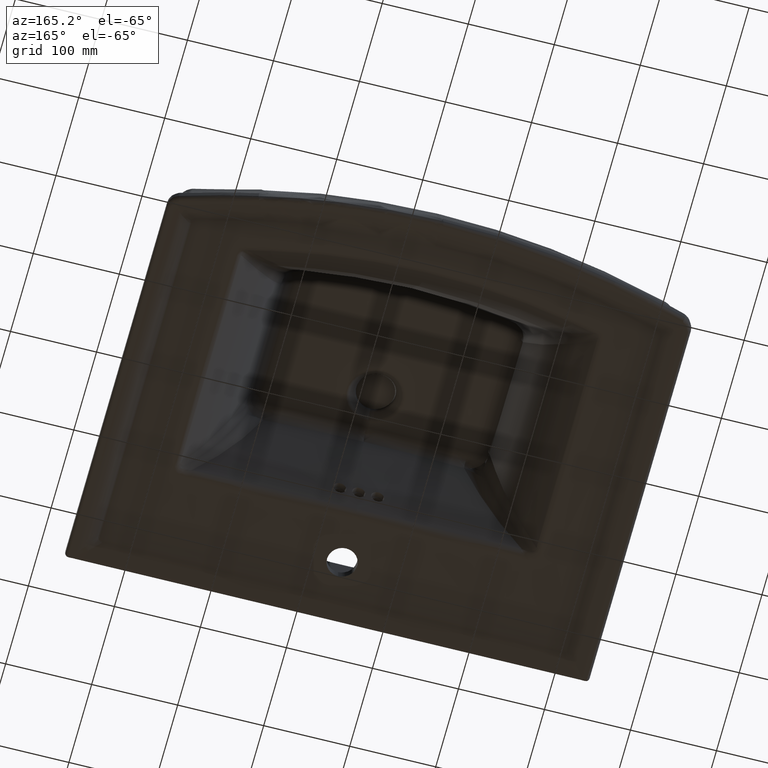
[diagram: clean part render]
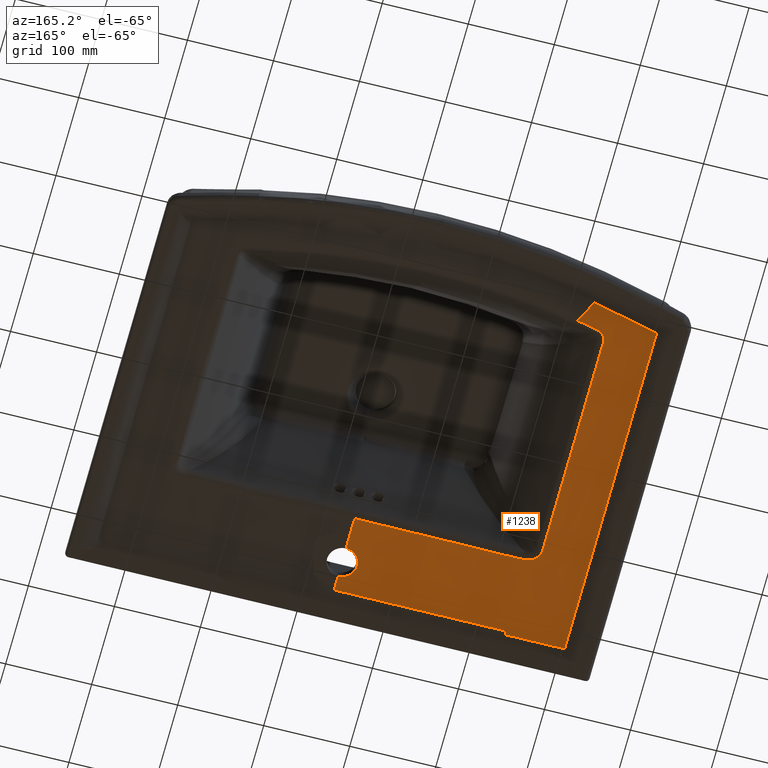
[diagram: same view with one face highlighted and labeled with its STEP entity id]
A machine part, auxiliary view. The second image highlights one B-rep face of the part: STEP entity #1238.
In plain terms, the highlighted face is a freeform B-spline surface patch.
Its self-contained STEP definition (entity closure, byte-faithful):
#527=(
BOUNDED_CURVE()
B_SPLINE_CURVE(3,(#27960,#27961,#27962,#27963,#27964,#27965,#27966,#27967,
#27968),.UNSPECIFIED.,.F.,.F.)
B_SPLINE_CURVE_WITH_KNOTS((4,1,1,1,1,1,4),(0.,0.204443085170576,0.397209226529622,
0.571420961974944,0.730323399031932,0.877170999029021,1.),.UNSPECIFIED.)
CURVE()
GEOMETRIC_REPRESENTATION_ITEM()
RATIONAL_B_SPLINE_CURVE((1.04133272269026,1.04133272269026,1.04133272269026,
1.04133272269026,1.04133272269026,1.04133272269026,1.04133272269026,1.04133272269026,
1.04133272269026))
REPRESENTATION_ITEM('')
);
#533=(
BOUNDED_CURVE()
B_SPLINE_CURVE(3,(#28456,#28457,#28458,#28459,#28460,#28461,#28462,#28463,
#28464,#28465),.UNSPECIFIED.,.F.,.F.)
B_SPLINE_CURVE_WITH_KNOTS((4,1,1,1,1,1,1,4),(0.,0.138300397537173,0.290928901350159,
0.446799577335633,0.597805811924647,0.737742475136925,0.884218695482368,
1.),.UNSPECIFIED.)
CURVE()
GEOMETRIC_REPRESENTATION_ITEM()
RATIONAL_B_SPLINE_CURVE((1.09730078944005,1.09730078944005,1.09730078944005,
1.09730078944005,1.09730078944005,1.09730078944005,1.09730078944005,1.09730078944005,
1.09730078944005,1.09730078944005))
REPRESENTATION_ITEM('')
);
#792=B_SPLINE_SURFACE_WITH_KNOTS('',3,3,((#29139,#29140,#29141,#29142,#29143,
#29144,#29145),(#29146,#29147,#29148,#29149,#29150,#29151,#29152),(#29153,
#29154,#29155,#29156,#29157,#29158,#29159),(#29160,#29161,#29162,#29163,
#29164,#29165,#29166),(#29167,#29168,#29169,#29170,#29171,#29172,#29173)),
 .UNSPECIFIED.,.F.,.F.,.F.,(4,1,4),(4,3,4),(0.,0.499903190651524,1.),(0.,
0.99009900990099,1.),.UNSPECIFIED.);
#1238=ADVANCED_FACE('',(#1762),#792,.T.);
#1762=FACE_OUTER_BOUND('',#2240,.T.);
#2240=EDGE_LOOP('',(#4376,#4377,#4378,#4379,#4380,#4381,#4382,#4383,#4384,
#4385,#4386,#4387,#4388,#4389,#4390,#4391,#4392));
#4376=ORIENTED_EDGE('',*,*,#6270,.T.);
#4377=ORIENTED_EDGE('',*,*,#6293,.F.);
#4378=ORIENTED_EDGE('',*,*,#6298,.F.);
#4379=ORIENTED_EDGE('',*,*,#6299,.F.);
#4380=ORIENTED_EDGE('',*,*,#6290,.F.);
#4381=ORIENTED_EDGE('',*,*,#6411,.F.);
#4382=ORIENTED_EDGE('',*,*,#5728,.T.);
#4383=ORIENTED_EDGE('',*,*,#6416,.F.);
#4384=ORIENTED_EDGE('',*,*,#6389,.F.);
#4385=ORIENTED_EDGE('',*,*,#6387,.F.);
#4386=ORIENTED_EDGE('',*,*,#6385,.F.);
#4387=ORIENTED_EDGE('',*,*,#6399,.F.);
#4388=ORIENTED_EDGE('',*,*,#6417,.F.);
#4389=ORIENTED_EDGE('',*,*,#6418,.F.);
#4390=ORIENTED_EDGE('',*,*,#6419,.F.);
#4391=ORIENTED_EDGE('',*,*,#6420,.F.);
#4392=ORIENTED_EDGE('',*,*,#6271,.T.);
#5002=VERTEX_POINT('',#11744);
#5003=VERTEX_POINT('',#11749);
#5283=VERTEX_POINT('',#23667);
#5289=VERTEX_POINT('',#23827);
#5290=VERTEX_POINT('',#23835);
#5304=VERTEX_POINT('',#24358);
#5305=VERTEX_POINT('',#24370);
#5306=VERTEX_POINT('',#24469);
#5309=VERTEX_POINT('',#24606);
#5350=VERTEX_POINT('',#27841);
#5351=VERTEX_POINT('',#27846);
#5352=VERTEX_POINT('',#27959);
#5353=VERTEX_POINT('',#28009);
#5358=VERTEX_POINT('',#28354);
#5361=VERTEX_POINT('',#29118);
#5362=VERTEX_POINT('',#29127);
#5363=VERTEX_POINT('',#29134);
#5728=EDGE_CURVE('',#5003,#5002,#6731,.T.);
#6270=EDGE_CURVE('',#5289,#5283,#7089,.T.);
#6271=EDGE_CURVE('',#5290,#5289,#7090,.T.);
#6290=EDGE_CURVE('',#5304,#5305,#7106,.T.);
#6293=EDGE_CURVE('',#5306,#5283,#7107,.T.);
#6298=EDGE_CURVE('',#5309,#5306,#7111,.T.);
#6299=EDGE_CURVE('',#5305,#5309,#7112,.T.);
#6385=EDGE_CURVE('',#5351,#5350,#7180,.T.);
#6387=EDGE_CURVE('',#5350,#5352,#527,.T.);
#6389=EDGE_CURVE('',#5352,#5353,#7182,.T.);
#6399=EDGE_CURVE('',#5358,#5351,#533,.T.);
#6411=EDGE_CURVE('',#5003,#5304,#7197,.T.);
#6416=EDGE_CURVE('',#5353,#5002,#7202,.T.);
#6417=EDGE_CURVE('',#5361,#5358,#7203,.T.);
#6418=EDGE_CURVE('',#5362,#5361,#7204,.T.);
#6419=EDGE_CURVE('',#5363,#5362,#7205,.T.);
#6420=EDGE_CURVE('',#5290,#5363,#7206,.T.);
#6731=B_SPLINE_CURVE_WITH_KNOTS('',3,(#11745,#11746,#11747,#11748),
 .UNSPECIFIED.,.F.,.F.,(4,4),(0.,1.),.UNSPECIFIED.);
#7089=B_SPLINE_CURVE_WITH_KNOTS('',3,(#23823,#23824,#23825,#23826),
 .UNSPECIFIED.,.F.,.F.,(4,4),(0.,1.),.UNSPECIFIED.);
#7090=B_SPLINE_CURVE_WITH_KNOTS('',3,(#23828,#23829,#23830,#23831,#23832,
#23833,#23834),.UNSPECIFIED.,.F.,.F.,(4,3,4),(0.,0.650571425817919,1.),
 .UNSPECIFIED.);
#7106=B_SPLINE_CURVE_WITH_KNOTS('',3,(#24359,#24360,#24361,#24362,#24363,
#24364,#24365,#24366,#24367,#24368,#24369),.UNSPECIFIED.,.F.,.F.,(4,1,1,
1,1,1,1,1,4),(0.,0.125,0.25,0.375,0.5,0.625,0.75,0.875,1.),
 .UNSPECIFIED.);
#7107=B_SPLINE_CURVE_WITH_KNOTS('',3,(#24470,#24471,#24472,#24473,#24474,
#24475,#24476,#24477,#24478,#24479,#24480,#24481),.UNSPECIFIED.,.F.,.F.,
(4,2,1,2,2,1,4),(0.,0.499999999999999,0.75,0.8125,0.84375,0.875,1.),
 .UNSPECIFIED.);
#7111=B_SPLINE_CURVE_WITH_KNOTS('',3,(#24607,#24608,#24609,#24610,#24611,
#24612,#24613,#24614,#24615,#24616,#24617,#24618,#24619),.UNSPECIFIED.,
 .F.,.F.,(4,1,1,1,1,1,1,1,1,1,4),(0.,0.1,0.2,0.3,0.4,0.5,0.6,0.7,0.8,0.9,
1.),.UNSPECIFIED.);
#7112=B_SPLINE_CURVE_WITH_KNOTS('',3,(#24718,#24719,#24720,#24721,#24722,
#24723,#24724,#24725,#24726,#24727,#24728),.UNSPECIFIED.,.F.,.F.,(4,1,1,
1,1,1,1,1,4),(0.,0.125,0.25,0.375,0.5,0.625,0.75,0.875,1.),
 .UNSPECIFIED.);
#7180=B_SPLINE_CURVE_WITH_KNOTS('',3,(#27847,#27848,#27849,#27850,#27851,
#27852,#27853,#27854,#27855,#27856,#27857,#27858,#27859,#27860,#27861,#27862,
#27863,#27864,#27865,#27866,#27867,#27868,#27869,#27870,#27871,#27872,#27873,
#27874,#27875,#27876,#27877,#27878,#27879,#27880,#27881,#27882,#27883,#27884,
#27885,#27886,#27887,#27888,#27889,#27890,#27891,#27892,#27893,#27894,#27895,
#27896,#27897,#27898,#27899,#27900,#27901,#27902,#27903,#27904),
 .UNSPECIFIED.,.F.,.F.,(4,2,2,2,2,2,2,2,2,2,2,2,2,2,2,2,2,2,2,2,2,2,2,2,
2,2,2,2,4),(0.,0.0624999999999734,0.0937499999999612,0.124999999999949,
0.156249999999937,0.171874999999932,0.187499999999927,0.218749999999914,
0.234374999999909,0.242187499999906,0.249999999999903,0.281249999999903,
0.296874999999903,0.312499999999902,0.343749999999901,0.3593749999999,0.3671874999999,
0.3710937499999,0.3749999999999,0.437499999999902,0.468749999999904,0.484374999999905,
0.499999999999906,0.62499999999993,0.749999999999953,0.812499999999964,
0.84374999999997,0.874999999999976,1.),.UNSPECIFIED.);
#7182=B_SPLINE_CURVE_WITH_KNOTS('',3,(#28010,#28011,#28012,#28013,#28014,
#28015,#28016,#28017,#28018,#28019,#28020,#28021,#28022,#28023,#28024,#28025,
#28026,#28027,#28028,#28029,#28030,#28031,#28032,#28033,#28034,#28035,#28036,
#28037,#28038,#28039,#28040,#28041),.UNSPECIFIED.,.F.,.F.,(4,2,2,2,2,2,
2,2,2,2,2,2,2,2,2,4),(0.,0.0625000000000062,0.0937500000000075,0.109375000000008,
0.125000000000009,0.250000000000009,0.500000000000012,0.625000000000012,
0.750000000000013,0.781250000000012,0.81250000000001,0.843750000000008,
0.875000000000007,0.906250000000005,0.937500000000003,1.),.UNSPECIFIED.);
#7197=B_SPLINE_CURVE_WITH_KNOTS('',3,(#28966,#28967,#28968,#28969),
 .UNSPECIFIED.,.F.,.F.,(4,4),(0.,1.),.UNSPECIFIED.);
#7202=B_SPLINE_CURVE_WITH_KNOTS('',3,(#29086,#29087,#29088,#29089),
 .UNSPECIFIED.,.F.,.F.,(4,4),(0.,1.),.UNSPECIFIED.);
#7203=B_SPLINE_CURVE_WITH_KNOTS('',3,(#29114,#29115,#29116,#29117),
 .UNSPECIFIED.,.F.,.F.,(4,4),(0.,1.),.UNSPECIFIED.);
#7204=B_SPLINE_CURVE_WITH_KNOTS('',3,(#29119,#29120,#29121,#29122,#29123,
#29124,#29125,#29126),.UNSPECIFIED.,.F.,.F.,(4,2,2,4),(0.,0.5,0.75,1.),
 .UNSPECIFIED.);
#7205=B_SPLINE_CURVE_WITH_KNOTS('',3,(#29128,#29129,#29130,#29131,#29132,
#29133),.UNSPECIFIED.,.F.,.F.,(4,2,4),(0.,0.5,1.),.UNSPECIFIED.);
#7206=B_SPLINE_CURVE_WITH_KNOTS('',3,(#29135,#29136,#29137,#29138),
 .UNSPECIFIED.,.F.,.F.,(4,4),(0.,1.),.UNSPECIFIED.);
#11744=CARTESIAN_POINT('',(-170.773231601641,153.302438056999,214.793280192846));
#11745=CARTESIAN_POINT('',(-183.258741515723,153.890813301405,241.568542609684));
#11746=CARTESIAN_POINT('',(-179.132169255207,153.709557311659,232.719079839026));
#11747=CARTESIAN_POINT('',(-174.969853280337,153.51226511149,223.79296442557));
#11748=CARTESIAN_POINT('',(-170.773209971947,153.304450158079,214.793233807816));
#11749=CARTESIAN_POINT('',(-183.258611328937,153.893053713523,241.568263427405));
#23667=CARTESIAN_POINT('',(-191.381273765138,153.873565531653,-182.22024957965));
#23823=CARTESIAN_POINT('',(-191.381273765939,153.765875333024,-177.821016035995));
#23824=CARTESIAN_POINT('',(-191.381273765939,153.801274715329,-179.28743970942));
#23825=CARTESIAN_POINT('',(-191.381273765939,153.837170593732,-180.753851482833));
#23826=CARTESIAN_POINT('',(-191.381273765939,153.873566716243,-182.220250756058));
#23827=CARTESIAN_POINT('',(-191.381273765939,153.765875333024,-177.821016035995));
#23828=CARTESIAN_POINT('',(8.53185434756553,153.572598725017,-177.837925548027));
#23829=CARTESIAN_POINT('',(-34.8207588285009,153.572603358406,-177.837925142658));
#23830=CARTESIAN_POINT('',(-78.1733815467077,153.597976216892,-177.835705305273));
#23831=CARTESIAN_POINT('',(-121.525960712732,153.652072866385,-177.830972461707));
#23832=CARTESIAN_POINT('',(-144.811077932735,153.681128734545,-177.828430402634));
#23833=CARTESIAN_POINT('',(-168.096186688403,153.718575001647,-177.825154278772));
#23834=CARTESIAN_POINT('',(-191.381273765939,153.765875333024,-177.821016035995));
#23835=CARTESIAN_POINT('',(8.53185434756553,153.572598725017,-177.837925548027));
#24358=CARTESIAN_POINT('',(-259.66220970514,153.942963434805,222.535281099339));
#24359=CARTESIAN_POINT('',(-259.66220970514,153.942963434805,222.535281099339));
#24360=CARTESIAN_POINT('',(-259.72998657474,153.943023818405,222.515340445739));
#24361=CARTESIAN_POINT('',(-259.85534625364,153.943125667505,222.468821966839));
#24362=CARTESIAN_POINT('',(-260.01182213484,153.943223446805,222.380249223439));
#24363=CARTESIAN_POINT('',(-260.14158399294,153.943278592905,222.275986109339));
#24364=CARTESIAN_POINT('',(-260.24695291394,153.943295018305,222.156469816939));
#24365=CARTESIAN_POINT('',(-260.32998965304,153.943275141305,222.021298334239));
#24366=CARTESIAN_POINT('',(-260.39122544484,153.943217528105,221.868717185339));
#24367=CARTESIAN_POINT('',(-260.43038003044,153.943119007305,221.696890656139));
#24368=CARTESIAN_POINT('',(-260.43915996154,153.943018642505,221.566649800839));
#24369=CARTESIAN_POINT('',(-260.43923556174,153.942959354205,221.497843292039));
#24370=CARTESIAN_POINT('',(-260.43923556174,153.942959354205,221.497843292039));
#24469=CARTESIAN_POINT('',(-259.35605401144,153.941255707105,-182.099540892462));
#24470=CARTESIAN_POINT('',(-259.35605401184,153.941255435405,-182.099540892962));
#24471=CARTESIAN_POINT('',(-248.630741300428,153.92801170634,-182.122184538635));
#24472=CARTESIAN_POINT('',(-237.65969103003,153.915836891849,-182.143471018606));
#24473=CARTESIAN_POINT('',(-220.834503793019,153.899081342758,-182.173397304858));
#24474=CARTESIAN_POINT('',(-213.747214976334,153.892413507982,-182.185448651781));
#24475=CARTESIAN_POINT('',(-206.563932756521,153.886123094894,-182.196977195726));
#24476=CARTESIAN_POINT('',(-204.403188475422,153.8842584154,-182.200404389378));
#24477=CARTESIAN_POINT('',(-203.714666369689,153.883668338501,-182.201490424096));
#24478=CARTESIAN_POINT('',(-202.179106205877,153.882362733502,-182.203897173377));
#24479=CARTESIAN_POINT('',(-198.33694505489,153.879121682606,-182.209881037283));
#24480=CARTESIAN_POINT('',(-194.478480162127,153.875994720168,-182.215699693485));
#24481=CARTESIAN_POINT('',(-191.381273765938,153.873564347063,-182.22024840324));
#24606=CARTESIAN_POINT('',(-260.43939739624,153.941259653505,-181.016263545062));
#24607=CARTESIAN_POINT('',(-260.43939739624,153.941259653505,-181.016263545062));
#24608=CARTESIAN_POINT('',(-260.43925406544,153.941353004505,-181.092117772162));
#24609=CARTESIAN_POINT('',(-260.43008226094,153.941513211105,-181.234288368362));
#24610=CARTESIAN_POINT('',(-260.39186393624,153.941681093905,-181.416904112062));
#24611=CARTESIAN_POINT('',(-260.33276641654,153.941793481605,-181.575033529962));
#24612=CARTESIAN_POINT('',(-260.25423889004,153.941856800305,-181.710385505562));
#24613=CARTESIAN_POINT('',(-260.15753866444,153.941876088805,-181.824715884262));
#24614=CARTESIAN_POINT('',(-260.04265959494,153.941853472006,-181.919544538662));
#24615=CARTESIAN_POINT('',(-259.90856332784,153.941788213305,-181.995704834962));
#24616=CARTESIAN_POINT('',(-259.75307171914,153.941675876505,-182.052924123262));
#24617=CARTESIAN_POINT('',(-259.57304264294,153.941509356905,-182.090367885862));
#24618=CARTESIAN_POINT('',(-259.43166677594,153.941349096105,-182.099400444662));
#24619=CARTESIAN_POINT('',(-259.35605401144,153.941255707105,-182.099540892462));
#24718=CARTESIAN_POINT('',(-260.43923556174,153.942959354205,221.497843292039));
#24719=CARTESIAN_POINT('',(-260.46326956674,153.928842206405,205.104660320639));
#24720=CARTESIAN_POINT('',(-260.50765918454,153.903053432605,172.224394945239));
#24721=CARTESIAN_POINT('',(-260.56349115244,153.872766417405,122.620935185539));
#24722=CARTESIAN_POINT('',(-260.60326608144,153.851778866205,72.7341705319587));
#24723=CARTESIAN_POINT('',(-260.62396664214,153.841077490805,22.5637108399186));
#24724=CARTESIAN_POINT('',(-260.62191332064,153.841938711205,-27.8910351452614));
#24725=CARTESIAN_POINT('',(-260.59373544014,153.856185468405,-78.6306774266916));
#24726=CARTESIAN_POINT('',(-260.53571307194,153.886531880005,-129.656083080362));
#24727=CARTESIAN_POINT('',(-260.47562949004,153.920157190605,-163.863994715562));
#24728=CARTESIAN_POINT('',(-260.43939739624,153.941259653505,-181.016263545062));
#27841=CARTESIAN_POINT('',(-205.65388159834,152.343740208205,-71.3949623009515));
#27846=CARTESIAN_POINT('',(-183.23699713234,152.027090512105,-87.9952504538516));
#27847=CARTESIAN_POINT('',(-183.23699481471,152.027210280748,-87.9952489621476));
#27848=CARTESIAN_POINT('',(-184.062233518402,152.043181943899,-87.9954546440533));
#27849=CARTESIAN_POINT('',(-184.891210417509,152.058870402355,-87.9762149678859));
#27850=CARTESIAN_POINT('',(-186.1392377114,152.082174541609,-87.9123077706));
#27851=CARTESIAN_POINT('',(-186.555992672498,152.089906623183,-87.8851739221012));
#27852=CARTESIAN_POINT('',(-187.390626184723,152.105358874505,-87.8183906595887));
#27853=CARTESIAN_POINT('',(-187.84648512135,152.113778918668,-87.7744651493584));
#27854=CARTESIAN_POINT('',(-188.60699682402,152.127780058041,-87.689129290607));
#27855=CARTESIAN_POINT('',(-188.990254981801,152.134815661556,-87.6403714323677));
#27856=CARTESIAN_POINT('',(-189.569360939185,152.145393539235,-87.556750980596));
#27857=CARTESIAN_POINT('',(-189.763098347105,152.148923454543,-87.5271302941085));
#27858=CARTESIAN_POINT('',(-190.151916357781,152.155984926509,-87.4641718791098));
#27859=CARTESIAN_POINT('',(-190.380277416391,152.160116513165,-87.4248304989898));
#27860=CARTESIAN_POINT('',(-190.867586198479,152.168902413298,-87.3369224947438));
#27861=CARTESIAN_POINT('',(-191.212785690289,152.175083349745,-87.2693526349451));
#27862=CARTESIAN_POINT('',(-191.760582771427,152.18478884776,-87.1512223148869));
#27863=CARTESIAN_POINT('',(-191.9481725231,152.18809787306,-87.1090223376482));
#27864=CARTESIAN_POINT('',(-192.236904607837,152.193173250844,-87.0408520452723));
#27865=CARTESIAN_POINT('',(-192.3343728428,152.194883662511,-87.0173159887747));
#27866=CARTESIAN_POINT('',(-192.531729843545,152.198341535659,-86.9685016502489));
#27867=CARTESIAN_POINT('',(-192.672350129482,152.200800496413,-86.9326613959333));
#27868=CARTESIAN_POINT('',(-192.974109293379,152.206071610091,-86.854413058595));
#27869=CARTESIAN_POINT('',(-193.266705163342,152.211170146616,-86.7752439070818));
#27870=CARTESIAN_POINT('',(-193.780859965936,152.220075986975,-86.6231253651455));
#27871=CARTESIAN_POINT('',(-193.964776976376,152.223253755355,-86.5668145896977));
#27872=CARTESIAN_POINT('',(-194.357236555903,152.230001630079,-86.4409692808053));
#27873=CARTESIAN_POINT('',(-194.517449924742,152.232751922411,-86.3883937146161));
#27874=CARTESIAN_POINT('',(-195.324095611152,152.246441721617,-86.1053738629044));
#27875=CARTESIAN_POINT('',(-195.749432993294,152.253433944001,-85.9352864934709));
#27876=CARTESIAN_POINT('',(-196.223496757874,152.261177210186,-85.7357981961674));
#27877=CARTESIAN_POINT('',(-196.354225697153,152.263300755298,-85.678507288235));
#27878=CARTESIAN_POINT('',(-196.510135674859,152.265829592134,-85.608979183249));
#27879=CARTESIAN_POINT('',(-196.55540795488,152.266562948846,-85.5885296668052));
#27880=CARTESIAN_POINT('',(-196.613349093448,152.267501052092,-85.5621852633628));
#27881=CARTESIAN_POINT('',(-196.631001430674,152.267786757081,-85.5541247914966));
#27882=CARTESIAN_POINT('',(-196.662994300116,152.268304495868,-85.5394777378451));
#27883=CARTESIAN_POINT('',(-196.645915399703,152.268028118066,-85.5473428179313));
#27884=CARTESIAN_POINT('',(-197.395762586961,152.280161721915,-85.2024438082072));
#27885=CARTESIAN_POINT('',(-198.022537882072,152.290210380555,-84.8645861264002));
#27886=CARTESIAN_POINT('',(-198.84902879982,152.302917219823,-84.3626462136388));
#27887=CARTESIAN_POINT('',(-199.105828305497,152.306743202984,-84.1962314503412));
#27888=CARTESIAN_POINT('',(-199.463250435216,152.311982679122,-83.9518586612605));
#27889=CARTESIAN_POINT('',(-199.577769022573,152.313645961394,-83.8712765992211));
#27890=CARTESIAN_POINT('',(-199.797748271532,152.316819939515,-83.7124961637284));
#27891=CARTESIAN_POINT('',(-199.880247529494,152.318003462523,-83.6517240486513));
#27892=CARTESIAN_POINT('',(-200.996518396565,152.333905494538,-82.8045802691609));
#27893=CARTESIAN_POINT('',(-201.799445505582,152.344610502283,-82.0258742320445));
#27894=CARTESIAN_POINT('',(-203.22848999282,152.360276899423,-80.2525446823336));
#27895=CARTESIAN_POINT('',(-203.739690049608,152.364821035748,-79.4430977969724));
#27896=CARTESIAN_POINT('',(-204.470143142507,152.368126189923,-77.8750687617739));
#27897=CARTESIAN_POINT('',(-204.672651404593,152.368261318054,-77.3508545666335));
#27898=CARTESIAN_POINT('',(-204.925092641871,152.367557180561,-76.5811280285093));
#27899=CARTESIAN_POINT('',(-205.006202154299,152.367158390893,-76.3108719243878));
#27900=CARTESIAN_POINT('',(-205.158499967568,152.365965108105,-75.7425357360778));
#27901=CARTESIAN_POINT('',(-205.241179010914,152.364990995885,-75.3888788561596));
#27902=CARTESIAN_POINT('',(-205.506222781838,152.360848958472,-74.1080447381894));
#27903=CARTESIAN_POINT('',(-205.654653288188,152.355765343387,-72.8492512880261));
#27904=CARTESIAN_POINT('',(-205.653873423215,152.344081615697,-71.3949596292405));
#27959=CARTESIAN_POINT('',(-205.65944213054,153.348421767705,195.182366670639));
#27960=CARTESIAN_POINT('',(-205.653885674815,152.343569523679,-71.3949636032707));
#27961=CARTESIAN_POINT('',(-205.653297251958,152.204961926726,-53.23061986897));
#27962=CARTESIAN_POINT('',(-205.652738609498,152.036895440869,-17.9378045675757));
#27963=CARTESIAN_POINT('',(-205.652917809674,152.045814109177,32.8370319376662));
#27964=CARTESIAN_POINT('',(-205.654142352873,152.241143325413,79.5667747784707));
#27965=CARTESIAN_POINT('',(-205.655862439471,152.554534121874,122.217298663925));
#27966=CARTESIAN_POINT('',(-205.65738601217,152.930133187749,160.302354703021));
#27967=CARTESIAN_POINT('',(-205.658840703469,153.211898677506,184.267115459718));
#27968=CARTESIAN_POINT('',(-205.659444072069,153.348306702034,195.182371353416));
#28009=CARTESIAN_POINT('',(-194.54968745844,153.431427524605,209.616250370839));
#28010=CARTESIAN_POINT('',(-205.659439450561,153.348652029166,195.182363761091));
#28011=CARTESIAN_POINT('',(-205.659634694574,153.356239899957,195.782687684529));
#28012=CARTESIAN_POINT('',(-205.638144520322,153.362429569147,196.309690903445));
#28013=CARTESIAN_POINT('',(-205.591366256559,153.370225360127,196.986187892001));
#28014=CARTESIAN_POINT('',(-205.573419273823,153.372565954068,197.192717932142));
#28015=CARTESIAN_POINT('',(-205.545344566063,153.375718889411,197.473736827978));
#28016=CARTESIAN_POINT('',(-205.535785984307,153.376710369968,197.562609417013));
#28017=CARTESIAN_POINT('',(-205.516624424595,153.378578581351,197.730700023584));
#28018=CARTESIAN_POINT('',(-205.513120066472,153.378925509525,197.761911165524));
#28019=CARTESIAN_POINT('',(-205.373206601565,153.3910805223,198.863365613239));
#28020=CARTESIAN_POINT('',(-205.23494054406,153.398320688647,199.528868480292));
#28021=CARTESIAN_POINT('',(-204.514334969039,153.423348699435,202.057812975529));
#28022=CARTESIAN_POINT('',(-203.928294879424,153.432878628514,203.248647740116));
#28023=CARTESIAN_POINT('',(-202.551002301718,153.444010640837,205.120700790406));
#28024=CARTESIAN_POINT('',(-202.070554981249,153.446470954617,205.652486092195));
#28025=CARTESIAN_POINT('',(-200.948171592264,153.449854167024,206.686963766382));
#28026=CARTESIAN_POINT('',(-200.270206801547,153.450341052554,207.200126106665));
#28027=CARTESIAN_POINT('',(-199.400857962995,153.449365201305,207.733497612362));
#28028=CARTESIAN_POINT('',(-199.219684537472,153.449101016659,207.839359772823));
#28029=CARTESIAN_POINT('',(-198.842398605157,153.448437843182,208.04828743474));
#28030=CARTESIAN_POINT('',(-198.613216985361,153.447963587075,208.167779902195));
#28031=CARTESIAN_POINT('',(-198.272214160181,153.4471840003,208.337203317145));
#28032=CARTESIAN_POINT('',(-198.085588376182,153.446723796863,208.426046663133));
#28033=CARTESIAN_POINT('',(-197.679198869609,153.445610297303,208.608081571947));
#28034=CARTESIAN_POINT('',(-197.423160225928,153.444837082098,208.715596635754));
#28035=CARTESIAN_POINT('',(-197.023099545332,153.443500195872,208.873763008791));
#28036=CARTESIAN_POINT('',(-196.815089598494,153.442742606577,208.951461544334));
#28037=CARTESIAN_POINT('',(-196.383043542305,153.441030972847,209.102856008998));
#28038=CARTESIAN_POINT('',(-196.110868878754,153.439855555947,209.191319073623));
#28039=CARTESIAN_POINT('',(-195.559254531943,153.437312939067,209.360578376351));
#28040=CARTESIAN_POINT('',(-195.100343116123,153.435054336999,209.48896802293));
#28041=CARTESIAN_POINT('',(-194.549685992105,153.431581283149,209.616248062949));
#28354=CARTESIAN_POINT('',(8.53183658549894,150.247740782705,-87.9866805740116));
#28456=CARTESIAN_POINT('',(8.53183651992664,150.247740911792,-87.986686322604));
#28457=CARTESIAN_POINT('',(-0.309515857545406,150.247803467894,-87.986687385454));
#28458=CARTESIAN_POINT('',(-18.9082305822814,150.271034201327,-87.986934847811));
#28459=CARTESIAN_POINT('',(-47.4713085854,150.381565961655,-87.9875330309137));
#28460=CARTESIAN_POINT('',(-76.8459539869287,150.577862233286,-87.9881477582727));
#28461=CARTESIAN_POINT('',(-105.408129462542,150.850391141588,-87.9892876921408));
#28462=CARTESIAN_POINT('',(-133.368455903355,151.195230315343,-87.9912554017186));
#28463=CARTESIAN_POINT('',(-159.075686953881,151.585390302924,-87.9932871578739));
#28464=CARTESIAN_POINT('',(-175.837349773887,151.885356338961,-87.9946175213235));
#28465=CARTESIAN_POINT('',(-183.237000513773,152.027029655976,-87.9952454609963));
#28966=CARTESIAN_POINT('',(-183.258705165928,153.890807903842,241.568433246356));
#28967=CARTESIAN_POINT('',(-208.979571867641,153.903891815881,236.295434005103));
#28968=CARTESIAN_POINT('',(-234.483823837322,153.920528996708,229.952154830793));
#28969=CARTESIAN_POINT('',(-259.662209705945,153.942962791532,222.535281100059));
#29086=CARTESIAN_POINT('',(-194.549688184273,153.431349577377,209.616251545036));
#29087=CARTESIAN_POINT('',(-185.45430722925,153.378437240725,211.726081079368));
#29088=CARTESIAN_POINT('',(-177.520420582063,153.337315232586,213.419565251096));
#29089=CARTESIAN_POINT('',(-170.773226879539,153.304395499316,214.793270065862));
#29114=CARTESIAN_POINT('',(8.53184771811024,151.36234138271,-125.62825447661));
#29115=CARTESIAN_POINT('',(8.53184771543422,150.926202322376,-113.08358576591));
#29116=CARTESIAN_POINT('',(8.53184771274406,150.556208186838,-100.536219691183));
#29117=CARTESIAN_POINT('',(8.53184771004988,150.247740794874,-87.9866805748949));
#29118=CARTESIAN_POINT('',(8.53185438970006,151.362147987629,-125.622691639347));
#29119=CARTESIAN_POINT('',(-8.96848370609119,152.021194598556,-143.117441603538));
#29120=CARTESIAN_POINT('',(-8.96848592330903,151.843236958528,-138.559287025159));
#29121=CARTESIAN_POINT('',(-7.06990030871933,151.668692128865,-133.969936475447));
#29122=CARTESIAN_POINT('',(-2.22870859806058,151.488096357291,-129.129012236562));
#29123=CARTESIAN_POINT('',(-0.27407845573803,151.440052067078,-127.823021372114));
#29124=CARTESIAN_POINT('',(3.941844458635,151.37674575315,-126.076424210701));
#29125=CARTESIAN_POINT('',(6.26164828171456,151.360764281161,-125.617174845912));
#29126=CARTESIAN_POINT('',(8.53185435195316,151.361954595632,-125.617128818724));
#29127=CARTESIAN_POINT('',(-8.96831466141543,152.021408562537,-143.12284804055));
#29128=CARTESIAN_POINT('',(8.53185438889582,152.754323673235,-160.616304965154));
#29129=CARTESIAN_POINT('',(3.98476255643199,152.75095890614,-160.616441960303));
#29130=CARTESIAN_POINT('',(-0.610127219247642,152.667610106392,-158.722563926552));
#29131=CARTESIAN_POINT('',(-7.07156290619219,152.394563680423,-152.263653151679));
#29132=CARTESIAN_POINT('',(-8.96848860096064,152.205775338943,-147.697547069032));
#29133=CARTESIAN_POINT('',(-8.96848370609124,152.021194598556,-143.117441603538));
#29134=CARTESIAN_POINT('',(8.53185436480902,152.754592015256,-160.622279707195));
#29135=CARTESIAN_POINT('',(8.5318543430661,153.802569420705,-182.360998654162));
#29136=CARTESIAN_POINT('',(8.5318543430661,153.429220980005,-175.117881438862));
#29137=CARTESIAN_POINT('',(8.5318543832605,153.080281601405,-167.873599663262));
#29138=CARTESIAN_POINT('',(8.5318543832605,152.754860358505,-160.628254477562));
#29139=CARTESIAN_POINT('',(8.53185438896987,153.847017932105,261.016597568439));
#29140=CARTESIAN_POINT('',(-82.4220358436198,153.847037351105,261.017172691239));
#29141=CARTESIAN_POINT('',(-173.73236606484,153.879466070705,248.107998577039));
#29142=CARTESIAN_POINT('',(-260.67316410094,153.944304090905,222.783170556339));
#29143=CARTESIAN_POINT('',(-261.542572081301,153.944952471107,222.529922276132));
#29144=CARTESIAN_POINT('',(-262.411980061662,153.945600851309,222.276673995925));
#29145=CARTESIAN_POINT('',(-263.281388042023,153.946249231511,222.023425715718));
#29146=CARTESIAN_POINT('',(8.53185438895692,151.285180918105,187.178134915339));
#29147=CARTESIAN_POINT('',(-82.2155572423998,151.285686842505,187.193620891939));
#29148=CARTESIAN_POINT('',(-173.26002731814,152.154045016205,176.408369203839));
#29149=CARTESIAN_POINT('',(-260.65820196384,153.890255439405,155.234653276239));
#29150=CARTESIAN_POINT('',(-261.532183710297,153.907617543637,155.022916116963));
#29151=CARTESIAN_POINT('',(-262.406165456754,153.924979647869,154.811178957687));
#29152=CARTESIAN_POINT('',(-263.280147203211,153.942341752101,154.599441798411));
#29153=CARTESIAN_POINT('',(8.53185438893268,147.458812257505,39.2865010747287));
#29154=CARTESIAN_POINT('',(-81.8299378704197,147.457875339705,39.3373648097687));
#29155=CARTESIAN_POINT('',(-172.34287553504,149.574757634905,32.8615669336588));
#29156=CARTESIAN_POINT('',(-260.62914444664,153.809459143305,20.1077053706487));
#29157=CARTESIAN_POINT('',(-261.512007135756,153.851806158389,19.9801667550186));
#29158=CARTESIAN_POINT('',(-262.394869824872,153.894153173473,19.8526281393885));
#29159=CARTESIAN_POINT('',(-263.277732513988,153.936500188557,19.7250895237584));
#29160=CARTESIAN_POINT('',(8.53185438890498,149.997939935705,-108.549581920962));
#29161=CARTESIAN_POINT('',(-81.3880399461197,149.999676508505,-108.582308917962));
#29162=CARTESIAN_POINT('',(-171.36884819134,151.288072899705,-110.768041184062));
#29163=CARTESIAN_POINT('',(-260.59829590474,153.863129109405,-115.021856296062));
#29164=CARTESIAN_POINT('',(-261.490590381874,153.888879671502,-115.064394447182));
#29165=CARTESIAN_POINT('',(-262.382884859008,153.914630233599,-115.106932598302));
#29166=CARTESIAN_POINT('',(-263.275179336142,153.940380795696,-115.149470749422));
#29167=CARTESIAN_POINT('',(8.53185438889197,153.802569423505,-182.360998653962));
#29168=CARTESIAN_POINT('',(-81.1807758343197,153.802633544405,-182.362214607462));
#29169=CARTESIAN_POINT('',(-170.89561347884,153.849566232405,-182.441182513962));
#29170=CARTESIAN_POINT('',(-260.58330551934,153.943367487405,-182.594833546262));
#29171=CARTESIAN_POINT('',(-261.480182439745,153.944305499955,-182.596370056585));
#29172=CARTESIAN_POINT('',(-262.37705936015,153.945243512505,-182.597906566908));
#29173=CARTESIAN_POINT('',(-263.273936280555,153.946181525055,-182.599443077231));